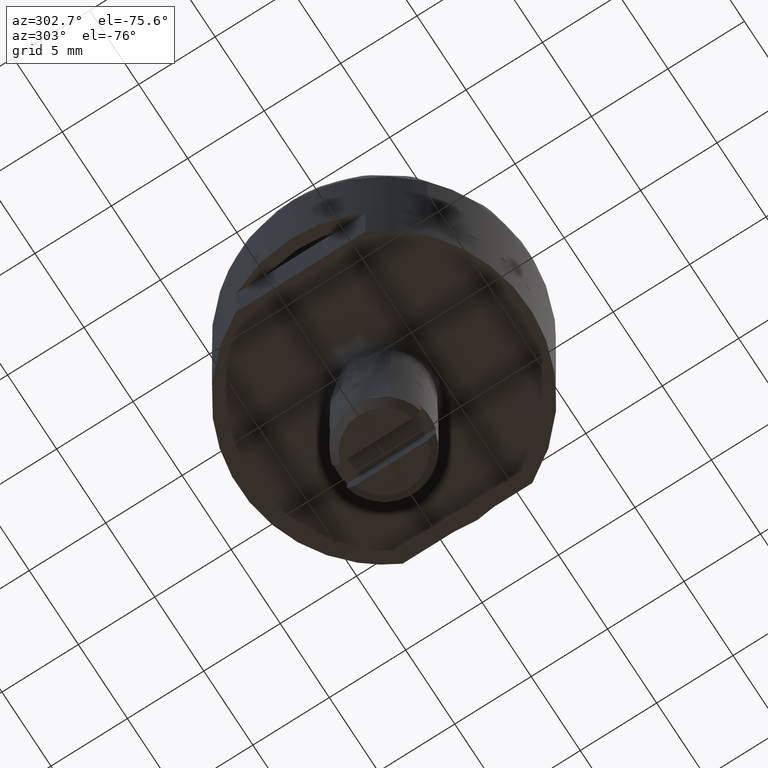
[diagram: clean part render]
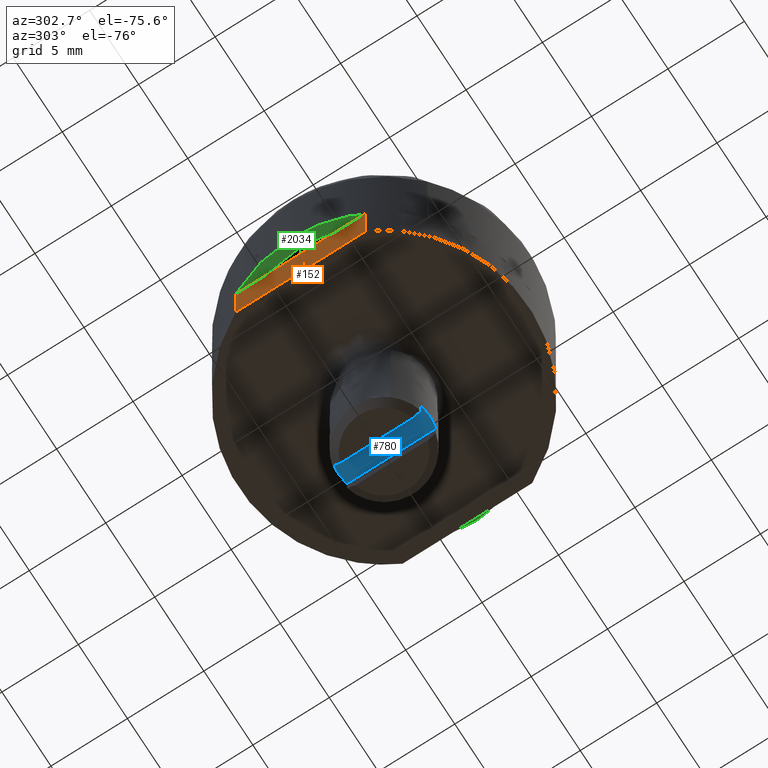
[diagram: same view with three faces highlighted in distinct colors, each labeled with its STEP entity id]
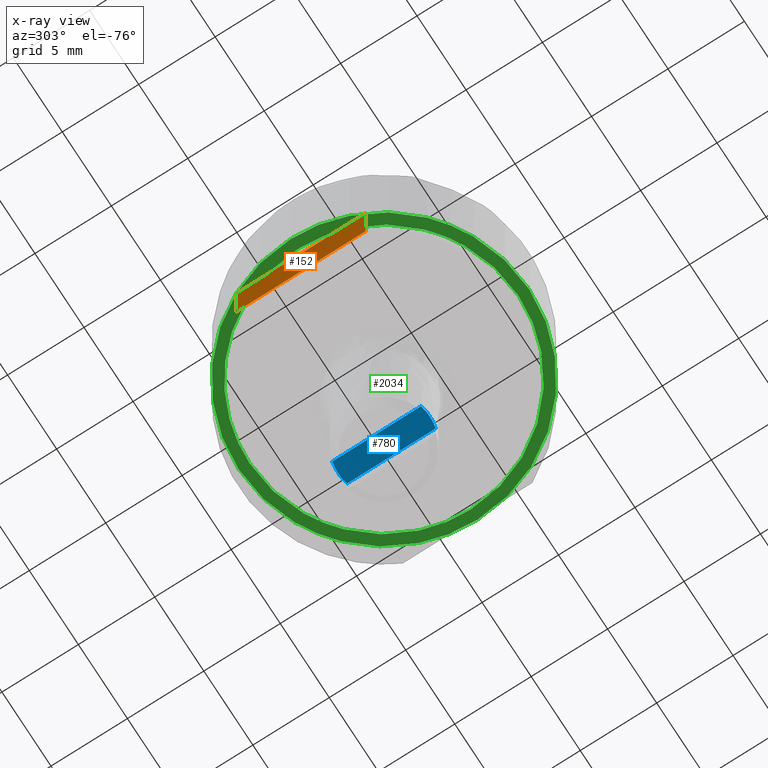
[diagram: x-ray of the same camera — body ghosted, the three highlighted faces saturated]
A machine part, auxiliary view with three faces highlighted in distinct colors.
The next image is the same camera in x-ray (body ghosted, the three faces saturated) — at least one of them is partly hidden behind the body in this view.
Their STEP definitions:

[orange] entity #152 — the highlighted face is a freeform B-spline surface patch.
#19=CARTESIAN_POINT('',(-8.500000000000000,4.242640687119344,0.0));
#20=VERTEX_POINT('',#19);
#45=CARTESIAN_POINT('',(-8.500000000000000,-4.242640687119335,0.0));
#46=VERTEX_POINT('',#45);
#47=CARTESIAN_POINT('',(-8.500000000000000,4.242640687119344,0.0));
#48=CARTESIAN_POINT('',(-8.500000000000000,-4.242640687119335,0.0));
#49=QUASI_UNIFORM_CURVE('',1,(#47,#48),.UNSPECIFIED.,.F.,.U.);
#50=EDGE_CURVE('',#20,#46,#49,.T.);
#93=CARTESIAN_POINT('',(-8.500000000000000,-4.242640687119335,-4.0));
#94=VERTEX_POINT('',#93);
#123=CARTESIAN_POINT('',(-8.500000000000000,-4.242640687119335,0.0));
#124=CARTESIAN_POINT('',(-8.500000000000000,-4.242640687119335,-4.0));
#125=QUASI_UNIFORM_CURVE('',1,(#123,#124),.UNSPECIFIED.,.F.,.U.);
#126=EDGE_CURVE('',#46,#94,#125,.T.);
#131=CARTESIAN_POINT('',(-8.500000000000000,-4.666480475316434,0.199799992247224));
#132=CARTESIAN_POINT('',(-8.500000000000000,-4.666480475316434,-4.199800099535585));
#133=CARTESIAN_POINT('',(-8.500000000000000,4.666480702909425,0.199799992247224));
#134=CARTESIAN_POINT('',(-8.500000000000000,4.666480702909425,-4.199800099535585));
#135=B_SPLINE_SURFACE_WITH_KNOTS('',1,1,((#131,#133),(#132,#134)),.UNSPECIFIED.,.F.,.F.,.U.,(2,2),(2,2),(0.0,4.399600091782808),(0.0,9.332961178225858),.UNSPECIFIED.);
#136=CARTESIAN_POINT('',(-8.500000000000000,4.242640687119344,-4.0));
#137=VERTEX_POINT('',#136);
#138=CARTESIAN_POINT('',(-8.500000000000000,4.242640687119344,-4.0));
#139=CARTESIAN_POINT('',(-8.500000000000000,-4.242640687119335,-4.0));
#140=QUASI_UNIFORM_CURVE('',1,(#138,#139),.UNSPECIFIED.,.F.,.U.);
#141=EDGE_CURVE('',#137,#94,#140,.T.);
#142=ORIENTED_EDGE('',*,*,#141,.T.);
#143=ORIENTED_EDGE('',*,*,#126,.F.);
#144=ORIENTED_EDGE('',*,*,#50,.F.);
#145=CARTESIAN_POINT('',(-8.500000000000000,4.242640687119344,0.0));
#146=CARTESIAN_POINT('',(-8.500000000000000,4.242640687119344,-4.0));
#147=QUASI_UNIFORM_CURVE('',1,(#145,#146),.UNSPECIFIED.,.F.,.U.);
#148=EDGE_CURVE('',#20,#137,#147,.T.);
#149=ORIENTED_EDGE('',*,*,#148,.T.);
#150=EDGE_LOOP('',(#142,#143,#144,#149));
#151=FACE_OUTER_BOUND('',#150,.T.);
#152=ADVANCED_FACE('',(#151),#135,.F.);

[blue] entity #780 — the highlighted face is a freeform B-spline surface patch.
#544=CARTESIAN_POINT('',(-0.750000000000000,-2.904737509655510,-14.500000000000000));
#545=VERTEX_POINT('',#544);
#551=CARTESIAN_POINT('',(0.750000000000000,-2.904737509655475,-14.500000000000000));
#552=VERTEX_POINT('',#551);
#553=CARTESIAN_POINT('',(0.750000000000000,-2.904737509655475,-14.500000000000000));
#554=CARTESIAN_POINT('',(0.490067254756747,-2.971952829229318,-14.500000000000000));
#555=CARTESIAN_POINT('',(-0.016299583060998,-3.032012832549531,-14.500000000000000));
#556=CARTESIAN_POINT('',(-0.520642894795666,-2.964015413186128,-14.500000000000011));
#557=CARTESIAN_POINT('',(-0.750000000000000,-2.904737509655510,-14.500000000000000));
#558=B_SPLINE_CURVE_WITH_KNOTS('',3,(#553,#554,#555,#556,#557),.UNSPECIFIED.,.F.,.U.,(4,1,4),(1.901423E-009,0.805426638091196,1.516097284144144),.UNSPECIFIED.);
#559=EDGE_CURVE('',#552,#545,#558,.T.);
#626=CARTESIAN_POINT('',(0.750000000000000,2.904737509655475,-14.500000000000000));
#627=VERTEX_POINT('',#626);
#633=CARTESIAN_POINT('',(-0.750000000000000,2.904737509655510,-14.500000000000000));
#634=VERTEX_POINT('',#633);
#635=CARTESIAN_POINT('',(-0.750000000000000,2.904737509655510,-14.500000000000000));
#636=CARTESIAN_POINT('',(-0.520643330736758,2.964014967536606,-14.500000000000011));
#637=CARTESIAN_POINT('',(-0.016298197056821,3.032011938282968,-14.499999999999980));
#638=CARTESIAN_POINT('',(0.490066735802997,2.971956294894936,-14.500000000000011));
#639=CARTESIAN_POINT('',(0.750000000000000,2.904737509655475,-14.500000000000000));
#640=B_SPLINE_CURVE_WITH_KNOTS('',3,(#635,#636,#637,#638,#639),.UNSPECIFIED.,.F.,.U.,(4,1,4),(1.901431E-009,0.710670647954373,1.516097284144144),.UNSPECIFIED.);
#641=EDGE_CURVE('',#634,#627,#640,.T.);
#756=CARTESIAN_POINT('',(0.750000000000000,2.904737509655475,-14.500000000000000));
#757=CARTESIAN_POINT('',(0.750000000000000,-2.904737509655475,-14.500000000000000));
#758=QUASI_UNIFORM_CURVE('',1,(#756,#757),.UNSPECIFIED.,.F.,.U.);
#759=EDGE_CURVE('',#627,#552,#758,.T.);
#765=CARTESIAN_POINT('',(0.824924997092709,-3.299697402946597,-14.500000000000000));
#766=CARTESIAN_POINT('',(-0.824925037325844,-3.299697402946597,-14.500000000000000));
#767=CARTESIAN_POINT('',(0.824924997092709,3.299697778455859,-14.500000000000000));
#768=CARTESIAN_POINT('',(-0.824925037325844,3.299697778455859,-14.500000000000000));
#769=B_SPLINE_SURFACE_WITH_KNOTS('',1,1,((#765,#767),(#766,#768)),.UNSPECIFIED.,.F.,.F.,.U.,(2,2),(2,2),(0.041708334948495,0.958291687403247),(0.0,6.599395181402455),.UNSPECIFIED.);
#770=CARTESIAN_POINT('',(-0.750000000000000,2.904737509655510,-14.500000000000000));
#771=CARTESIAN_POINT('',(-0.750000000000000,-2.904737509655510,-14.500000000000000));
#772=QUASI_UNIFORM_CURVE('',1,(#770,#771),.UNSPECIFIED.,.F.,.U.);
#773=EDGE_CURVE('',#634,#545,#772,.T.);
#774=ORIENTED_EDGE('',*,*,#773,.F.);
#775=ORIENTED_EDGE('',*,*,#641,.T.);
#776=ORIENTED_EDGE('',*,*,#759,.T.);
#777=ORIENTED_EDGE('',*,*,#559,.T.);
#778=EDGE_LOOP('',(#774,#775,#776,#777));
#779=FACE_OUTER_BOUND('',#778,.T.);
#780=ADVANCED_FACE('',(#779),#769,.T.);

[green] entity #2034 — the highlighted face is a freeform B-spline surface patch.
#1728=CARTESIAN_POINT('',(-5.976829320477572,-6.458909548098063,-2.914335E-016));
#1729=VERTEX_POINT('',#1728);
#1735=CARTESIAN_POINT('',(-8.800000000000001,0.0,0.0));
#1736=VERTEX_POINT('',#1735);
#1737=CARTESIAN_POINT('',(-5.976829320477572,-6.458909548098063,-2.914335E-016));
#1738=CARTESIAN_POINT('',(-6.323400614968360,-6.138239580417455,-2.769645E-016));
#1739=CARTESIAN_POINT('',(-6.977586927690695,-5.426998759924865,-2.448725E-016));
#1740=CARTESIAN_POINT('',(-7.672931050269103,-4.364460851592578,-1.969296E-016));
#1741=CARTESIAN_POINT('',(-8.193116011551588,-3.271590469489907,-1.476180E-016));
#1742=CARTESIAN_POINT('',(-8.546584403463102,-2.211875142685545,-9.980239E-017));
#1743=CARTESIAN_POINT('',(-8.757271994661299,-1.076537653286274,-4.857464E-017));
#1744=CARTESIAN_POINT('',(-8.800006991558062,-0.339958146970515,-1.533931E-017));
#1745=CARTESIAN_POINT('',(-8.800000000000001,0.0,0.0));
#1746=B_SPLINE_CURVE_WITH_KNOTS('',3,(#1737,#1738,#1739,#1740,#1741,#1742,#1743,#1744,#1745),.UNSPECIFIED.,.F.,.U.,(4,1,1,1,1,1,4),(7.488082E-009,1.416499396442370,2.889662336633205,3.796219585786425,5.042741341814392,6.232607538077953,7.252483898231816),.UNSPECIFIED.);
#1747=EDGE_CURVE('',#1729,#1736,#1746,.T.);
#1749=CARTESIAN_POINT('',(0.000000291017275,8.799999999999995,0.0));
#1750=VERTEX_POINT('',#1749);
#1751=CARTESIAN_POINT('',(-8.800000000000001,0.0,0.0));
#1752=CARTESIAN_POINT('',(-8.800148617804181,0.665965468526758,0.0));
#1753=CARTESIAN_POINT('',(-8.674726235761703,1.763812764294128,0.0));
#1754=CARTESIAN_POINT('',(-8.209735311495907,3.263528822433879,0.0));
#1755=CARTESIAN_POINT('',(-7.671174515001820,4.366921996312462,0.0));
#1756=CARTESIAN_POINT('',(-6.990161440025601,5.386111393734691,0.0));
#1757=CARTESIAN_POINT('',(-6.099836584529921,6.405659564482487,0.0));
#1758=CARTESIAN_POINT('',(-4.930399036427483,7.347510497737120,0.0));
#1759=CARTESIAN_POINT('',(-3.739993366558074,7.993135416359301,0.0));
#1760=CARTESIAN_POINT('',(-2.563084491705439,8.447137674547482,0.0));
#1761=CARTESIAN_POINT('',(-1.367901108600489,8.730979196420716,0.0));
#1762=CARTESIAN_POINT('',(-0.431964878206796,8.800014925500241,0.0));
#1763=CARTESIAN_POINT('',(0.000000291017275,8.799999999999995,0.0));
#1764=B_SPLINE_CURVE_WITH_KNOTS('',3,(#1751,#1752,#1753,#1754,#1755,#1756,#1757,#1758,#1759,#1760,#1761,#1762,#1763),.UNSPECIFIED.,.F.,.U.,(4,1,1,1,1,1,1,1,1,1,4),(0.000000024295094,1.997853151701950,3.293768700783314,4.697674069005199,5.669613153277345,6.965495452882982,8.747377175660617,10.151286489435620,11.015228202288180,12.527129788041130,13.823029524104980),.UNSPECIFIED.);
#1765=EDGE_CURVE('',#1736,#1750,#1764,.T.);
#1767=CARTESIAN_POINT('',(5.976829320477592,6.458909548098083,-2.914335E-016));
#1768=VERTEX_POINT('',#1767);
#1769=CARTESIAN_POINT('',(0.000000291017275,8.799999999999995,0.0));
#1770=CARTESIAN_POINT('',(0.684448232422249,8.800153136866822,-3.337407E-017));
#1771=CARTESIAN_POINT('',(1.796561268803697,8.669544206344888,-8.760132E-017));
#1772=CARTESIAN_POINT('',(3.350594603554447,8.178184381889615,-1.633769E-016));
#1773=CARTESIAN_POINT('',(4.700488685361181,7.498129520834948,-2.291985E-016));
#1774=CARTESIAN_POINT('',(5.562434792063097,6.842470619792312,-2.712274E-016));
#1775=CARTESIAN_POINT('',(5.976829320477592,6.458909548098083,-2.914335E-016));
#1776=B_SPLINE_CURVE_WITH_KNOTS('',3,(#1769,#1770,#1771,#1772,#1773,#1774,#1775),.UNSPECIFIED.,.F.,.U.,(4,1,1,1,4),(6.010713E-009,2.053295558314535,3.336597016304677,4.876576424991944,6.570545386117133),.UNSPECIFIED.);
#1777=EDGE_CURVE('',#1750,#1768,#1776,.T.);
#1813=CARTESIAN_POINT('',(8.800000000000001,0.0,0.0));
#1814=VERTEX_POINT('',#1813);
#1815=CARTESIAN_POINT('',(5.976829320477592,6.458909548098083,-2.914335E-016));
#1816=CARTESIAN_POINT('',(6.406623975910148,6.061316882283845,-2.734937E-016));
#1817=CARTESIAN_POINT('',(6.985075378767445,5.407318458350042,-2.439845E-016));
#1818=CARTESIAN_POINT('',(7.726912793270695,4.265756369653329,-1.924759E-016));
#1819=CARTESIAN_POINT('',(8.248255627806435,3.170528256527514,-1.430579E-016));
#1820=CARTESIAN_POINT('',(8.687134006593162,1.680872890743366,-7.584295E-017));
#1821=CARTESIAN_POINT('',(8.800108297690414,0.623269346359390,-2.812264E-017));
#1822=CARTESIAN_POINT('',(8.800000000000001,0.0,0.0));
#1823=B_SPLINE_CURVE_WITH_KNOTS('',3,(#1815,#1816,#1817,#1818,#1819,#1820,#1821,#1822),.UNSPECIFIED.,.F.,.U.,(4,1,1,1,1,4),(7.487063E-009,1.756460726982653,2.606365592705844,4.079514759633197,5.382702672354966,7.252483898231828),.UNSPECIFIED.);
#1824=EDGE_CURVE('',#1768,#1814,#1823,.T.);
#1826=CARTESIAN_POINT('',(-0.000000291017170,-8.799999999999994,0.0));
#1827=VERTEX_POINT('',#1826);
#1828=CARTESIAN_POINT('',(8.800000000000001,0.0,0.0));
#1829=CARTESIAN_POINT('',(8.800020701055304,-0.467964317772202,0.0));
#1830=CARTESIAN_POINT('',(8.716575808508681,-1.511895025558725,0.0));
#1831=CARTESIAN_POINT('',(8.357071736526333,-2.875979228278964,0.0));
#1832=CARTESIAN_POINT('',(7.808935187014397,-4.112385747372428,0.0));
#1833=CARTESIAN_POINT('',(7.224998346597764,-5.066590927958306,0.0));
#1834=CARTESIAN_POINT('',(6.399486619833240,-6.091663379409763,0.0));
#1835=CARTESIAN_POINT('',(5.424261891465554,-6.981002823789339,0.0));
#1836=CARTESIAN_POINT('',(4.196714608410975,-7.774234290790364,0.0));
#1837=CARTESIAN_POINT('',(3.124959676480547,-8.253254607182180,0.0));
#1838=CARTESIAN_POINT('',(2.037696351027722,-8.579404936316701,0.0));
#1839=CARTESIAN_POINT('',(1.061921467486164,-8.757989443948068,0.0));
#1840=CARTESIAN_POINT('',(0.341973727527219,-8.800006169148396,0.0));
#1841=CARTESIAN_POINT('',(-0.000000291017170,-8.799999999999994,0.0));
#1842=B_SPLINE_CURVE_WITH_KNOTS('',3,(#1828,#1829,#1830,#1831,#1832,#1833,#1834,#1835,#1836,#1837,#1838,#1839,#1840,#1841),.UNSPECIFIED.,.F.,.U.,(4,1,1,1,1,1,1,1,1,1,1,4),(0.000000024297217,1.403898254307549,3.131780177833374,4.211704941412444,5.453618396200502,6.479560502738066,8.153417707987241,9.395335967673029,10.853239421361261,11.663182735831560,12.797105710822811,13.823029524104911),.UNSPECIFIED.);
#1843=EDGE_CURVE('',#1814,#1827,#1842,.T.);
#1845=CARTESIAN_POINT('',(-0.000000291017170,-8.799999999999994,0.0));
#1846=CARTESIAN_POINT('',(-0.444880961665589,-8.800022035489965,-2.169263E-017));
#1847=CARTESIAN_POINT('',(-1.317524902596878,-8.733690799845835,-6.424324E-017));
#1848=CARTESIAN_POINT('',(-2.505030173535550,-8.462424540919338,-1.221467E-016));
#1849=CARTESIAN_POINT('',(-3.677877709829438,-8.026558156616641,-1.793354E-016));
#1850=CARTESIAN_POINT('',(-4.840605558157804,-7.397635845584256,-2.360306E-016));
#1851=CARTESIAN_POINT('',(-5.612652809706329,-6.795962008365218,-2.736761E-016));
#1852=CARTESIAN_POINT('',(-5.976829320477572,-6.458909548098063,-2.914335E-016));
#1853=B_SPLINE_CURVE_WITH_KNOTS('',3,(#1845,#1846,#1847,#1848,#1849,#1850,#1851,#1852),.UNSPECIFIED.,.F.,.U.,(4,1,1,1,1,4),(6.007006E-009,1.334640786545427,2.617954311911785,3.644592771651944,5.081906533703679,6.570545386117238),.UNSPECIFIED.);
#1854=EDGE_CURVE('',#1827,#1729,#1853,.T.);
#1882=CARTESIAN_POINT('',(6.452258935283756,6.972686472901689,-4.024558E-016));
#1883=VERTEX_POINT('',#1882);
#1889=CARTESIAN_POINT('',(0.000000425980554,9.499999999999991,0.0));
#1890=VERTEX_POINT('',#1889);
#1891=CARTESIAN_POINT('',(0.000000425980554,9.499999999999991,0.0));
#1892=CARTESIAN_POINT('',(0.461797754224191,9.500024685979037,-2.880434E-017));
#1893=CARTESIAN_POINT('',(1.237605871891857,9.443303920102625,-7.719491E-017));
#1894=CARTESIAN_POINT('',(2.598319291576997,9.174035671832449,-1.620686E-016));
#1895=CARTESIAN_POINT('',(3.944855129689045,8.695838342701668,-2.460580E-016));
#1896=CARTESIAN_POINT('',(5.330674877418467,7.909198591638424,-3.324977E-016));
#1897=CARTESIAN_POINT('',(6.099773139602137,7.298894891101413,-3.804698E-016));
#1898=CARTESIAN_POINT('',(6.452258935283756,6.972686472901689,-4.024558E-016));
#1899=B_SPLINE_CURVE_WITH_KNOTS('',3,(#1891,#1892,#1893,#1894,#1895,#1896,#1897,#1898),.UNSPECIFIED.,.F.,.U.,(4,1,1,1,1,4),(5.685146E-009,1.385389607533003,2.327459778009758,4.156169051571029,5.652396001282799,7.093202291576332),.UNSPECIFIED.);
#1900=EDGE_CURVE('',#1890,#1883,#1899,.T.);
#1902=CARTESIAN_POINT('',(-9.500000000000000,0.0,0.0));
#1903=VERTEX_POINT('',#1902);
#1904=CARTESIAN_POINT('',(-9.500000000000000,0.0,0.0));
#1905=CARTESIAN_POINT('',(-9.500046185495469,0.544053409570585,0.0));
#1906=CARTESIAN_POINT('',(-9.407948042106630,1.612709376140264,0.0));
#1907=CARTESIAN_POINT('',(-9.015064990912620,3.122193743539507,0.0));
#1908=CARTESIAN_POINT('',(-8.364150527015513,4.602931332799519,0.0));
#1909=CARTESIAN_POINT('',(-7.608574280366360,5.741276557046956,0.0));
#1910=CARTESIAN_POINT('',(-6.706735410512577,6.761112077706088,0.0));
#1911=CARTESIAN_POINT('',(-5.658516314836681,7.693834173120159,0.0));
#1912=CARTESIAN_POINT('',(-4.392494901204342,8.468613585289379,0.0));
#1913=CARTESIAN_POINT('',(-3.133924233372267,8.989811674466733,0.0));
#1914=CARTESIAN_POINT('',(-1.768117059099853,9.381408552091513,0.0));
#1915=CARTESIAN_POINT('',(-0.699508944171971,9.500136459582643,0.0));
#1916=CARTESIAN_POINT('',(0.000000425980554,9.499999999999991,0.0));
#1917=B_SPLINE_CURVE_WITH_KNOTS('',3,(#1904,#1905,#1906,#1907,#1908,#1909,#1910,#1911,#1912,#1913,#1914,#1915,#1916),.UNSPECIFIED.,.F.,.U.,(4,1,1,1,1,1,1,1,1,1,4),(0.000000024038721,1.632153623608106,3.206022504230930,4.663313690440845,6.470342573818412,7.286427914149812,8.743693387305640,10.667318180310881,11.716564962888659,12.824101381848079,14.922588753815321),.UNSPECIFIED.);
#1918=EDGE_CURVE('',#1903,#1890,#1917,.T.);
#1920=CARTESIAN_POINT('',(-6.452258935283783,-6.972686472901719,5.273559E-016));
#1921=VERTEX_POINT('',#1920);
#1922=CARTESIAN_POINT('',(-6.452258935283783,-6.972686472901719,5.273559E-016));
#1923=CARTESIAN_POINT('',(-6.916228445030714,-6.543459258962755,4.948928E-016));
#1924=CARTESIAN_POINT('',(-7.662918674418210,-5.699330195784274,4.310499E-016));
#1925=CARTESIAN_POINT('',(-8.556825124027876,-4.232439941976980,3.201065E-016));
#1926=CARTESIAN_POINT('',(-9.084074757498932,-2.899477491593142,2.192923E-016));
#1927=CARTESIAN_POINT('',(-9.421784285915264,-1.447601146947573,1.094845E-016));
#1928=CARTESIAN_POINT('',(-9.500049404631255,-0.550505895742765,4.163568E-017));
#1929=CARTESIAN_POINT('',(-9.500000000000000,0.0,0.0));
#1930=B_SPLINE_CURVE_WITH_KNOTS('',3,(#1922,#1923,#1924,#1925,#1926,#1927,#1928,#1929),.UNSPECIFIED.,.F.,.U.,(4,1,1,1,1,4),(6.983724E-009,1.896179237307524,3.364196378965290,5.138031056177724,6.177876419508608,7.829386050465431),.UNSPECIFIED.);
#1931=EDGE_CURVE('',#1921,#1903,#1930,.T.);
#1961=CARTESIAN_POINT('',(-0.000000425980724,-9.499999999999991,0.0));
#1962=VERTEX_POINT('',#1961);
#1963=CARTESIAN_POINT('',(-0.000000425980724,-9.499999999999991,0.0));
#1964=CARTESIAN_POINT('',(-0.701943560921032,-9.500132579507499,5.737121E-017));
#1965=CARTESIAN_POINT('',(-1.865610110699200,-9.370405369088681,1.524800E-016));
#1966=CARTESIAN_POINT('',(-3.354356556030573,-8.918680126521123,2.741582E-016));
#1967=CARTESIAN_POINT('',(-4.397901931619975,-8.441657950828585,3.594492E-016));
#1968=CARTESIAN_POINT('',(-5.430911008884951,-7.827130317362405,4.438791E-016));
#1969=CARTESIAN_POINT('',(-6.072667319781752,-7.324000500230620,4.963312E-016));
#1970=CARTESIAN_POINT('',(-6.452258935283783,-6.972686472901719,5.273559E-016));
#1971=B_SPLINE_CURVE_WITH_KNOTS('',3,(#1963,#1964,#1965,#1966,#1967,#1968,#1969,#1970),.UNSPECIFIED.,.F.,.U.,(4,1,1,1,1,4),(5.682122E-009,2.105795304919934,3.491192998078217,4.654912413584527,5.541565305201770,7.093202291576180),.UNSPECIFIED.);
#1972=EDGE_CURVE('',#1962,#1921,#1971,.T.);
#1974=CARTESIAN_POINT('',(9.500000000000000,0.0,0.0));
#1975=VERTEX_POINT('',#1974);
#1976=CARTESIAN_POINT('',(9.500000000000000,0.0,0.0));
#1977=CARTESIAN_POINT('',(9.500087499780859,-0.660639995707583,0.0));
#1978=CARTESIAN_POINT('',(9.388072401113037,-1.729269811721891,0.0));
#1979=CARTESIAN_POINT('',(9.004721922742927,-3.097974957857712,0.0));
#1980=CARTESIAN_POINT('',(8.602579317638883,-4.068828144828771,0.0));
#1981=CARTESIAN_POINT('',(8.113828604148965,-4.976511987842515,0.0));
#1982=CARTESIAN_POINT('',(7.541149482985354,-5.811234806670927,0.0));
#1983=CARTESIAN_POINT('',(6.775920631640096,-6.692869298718724,0.0));
#1984=CARTESIAN_POINT('',(5.979916068064624,-7.409892685652867,0.0));
#1985=CARTESIAN_POINT('',(4.980204693012793,-8.118569005555960,0.0));
#1986=CARTESIAN_POINT('',(3.950717075545981,-8.672927170391819,0.0));
#1987=CARTESIAN_POINT('',(2.819370002224375,-9.093423362497775,0.0));
#1988=CARTESIAN_POINT('',(1.534976050831114,-9.410991467457290,0.0));
#1989=CARTESIAN_POINT('',(0.602345057980239,-9.500065922317996,0.0));
#1990=CARTESIAN_POINT('',(-0.000000425980724,-9.499999999999991,0.0));
#1991=B_SPLINE_CURVE_WITH_KNOTS('',3,(#1976,#1977,#1978,#1979,#1980,#1981,#1982,#1983,#1984,#1985,#1986,#1987,#1988,#1989,#1990),.UNSPECIFIED.,.F.,.U.,(4,1,1,1,1,1,1,1,1,1,1,1,4),(0.000000024042125,1.981900770983611,3.206022504232498,4.255271303721539,5.129642491997515,6.295470566657116,7.286427914150327,8.627119407321120,9.501485327356557,10.958775182635270,12.124605582056059,13.115566284656749,14.922588753815409),.UNSPECIFIED.);
#1992=EDGE_CURVE('',#1975,#1962,#1991,.T.);
#1994=CARTESIAN_POINT('',(6.452258935283756,6.972686472901689,-4.024558E-016));
#1995=CARTESIAN_POINT('',(6.796468064676586,6.654203182177452,-3.840733E-016));
#1996=CARTESIAN_POINT('',(7.409693134200493,5.996028045064378,-3.460842E-016));
#1997=CARTESIAN_POINT('',(8.122233678441063,4.973171387803498,-2.870460E-016));
#1998=CARTESIAN_POINT('',(8.618295395662432,4.034353662563286,-2.328585E-016));
#1999=CARTESIAN_POINT('',(9.010486735538208,3.070172088217252,-1.772070E-016));
#2000=CARTESIAN_POINT('',(9.384691296545595,1.753413772095138,-1.012051E-016));
#2001=CARTESIAN_POINT('',(9.500119276967123,0.672847521630364,-3.883602E-017));
#2002=CARTESIAN_POINT('',(9.500000000000000,0.0,0.0));
#2003=B_SPLINE_CURVE_WITH_KNOTS('',3,(#1994,#1995,#1996,#1997,#1998,#1999,#2000,#2001,#2002),.UNSPECIFIED.,.F.,.U.,(4,1,1,1,1,1,4),(6.985234E-009,1.406840038488657,2.691355001275052,3.731196720525419,4.587529318650468,5.810872259049042,7.829386050465401),.UNSPECIFIED.);
#2004=EDGE_CURVE('',#1883,#1975,#2003,.T.);
#2013=CARTESIAN_POINT('',(10.449049963174311,-10.449049963174311,0.0));
#2014=CARTESIAN_POINT('',(-10.449050472794029,-10.449049963174311,0.0));
#2015=CARTESIAN_POINT('',(10.449049963174311,10.449050472794021,0.0));
#2016=CARTESIAN_POINT('',(-10.449050472794029,10.449050472794021,0.0));
#2017=B_SPLINE_SURFACE_WITH_KNOTS('',1,1,((#2013,#2015),(#2014,#2016)),.UNSPECIFIED.,.F.,.F.,.U.,(2,2),(2,2),(0.0,20.898100435968342),(0.0,20.898100435968320),.UNSPECIFIED.);
#2018=ORIENTED_EDGE('',*,*,#1918,.T.);
#2019=ORIENTED_EDGE('',*,*,#1900,.T.);
#2020=ORIENTED_EDGE('',*,*,#2004,.T.);
#2021=ORIENTED_EDGE('',*,*,#1992,.T.);
#2022=ORIENTED_EDGE('',*,*,#1972,.T.);
#2023=ORIENTED_EDGE('',*,*,#1931,.T.);
#2024=EDGE_LOOP('',(#2018,#2019,#2020,#2021,#2022,#2023));
#2025=FACE_OUTER_BOUND('',#2024,.T.);
#2026=ORIENTED_EDGE('',*,*,#1765,.F.);
#2027=ORIENTED_EDGE('',*,*,#1747,.F.);
#2028=ORIENTED_EDGE('',*,*,#1854,.F.);
#2029=ORIENTED_EDGE('',*,*,#1843,.F.);
#2030=ORIENTED_EDGE('',*,*,#1824,.F.);
#2031=ORIENTED_EDGE('',*,*,#1777,.F.);
#2032=EDGE_LOOP('',(#2026,#2027,#2028,#2029,#2030,#2031));
#2033=FACE_BOUND('',#2032,.T.);
#2034=ADVANCED_FACE('',(#2025,#2033),#2017,.T.);